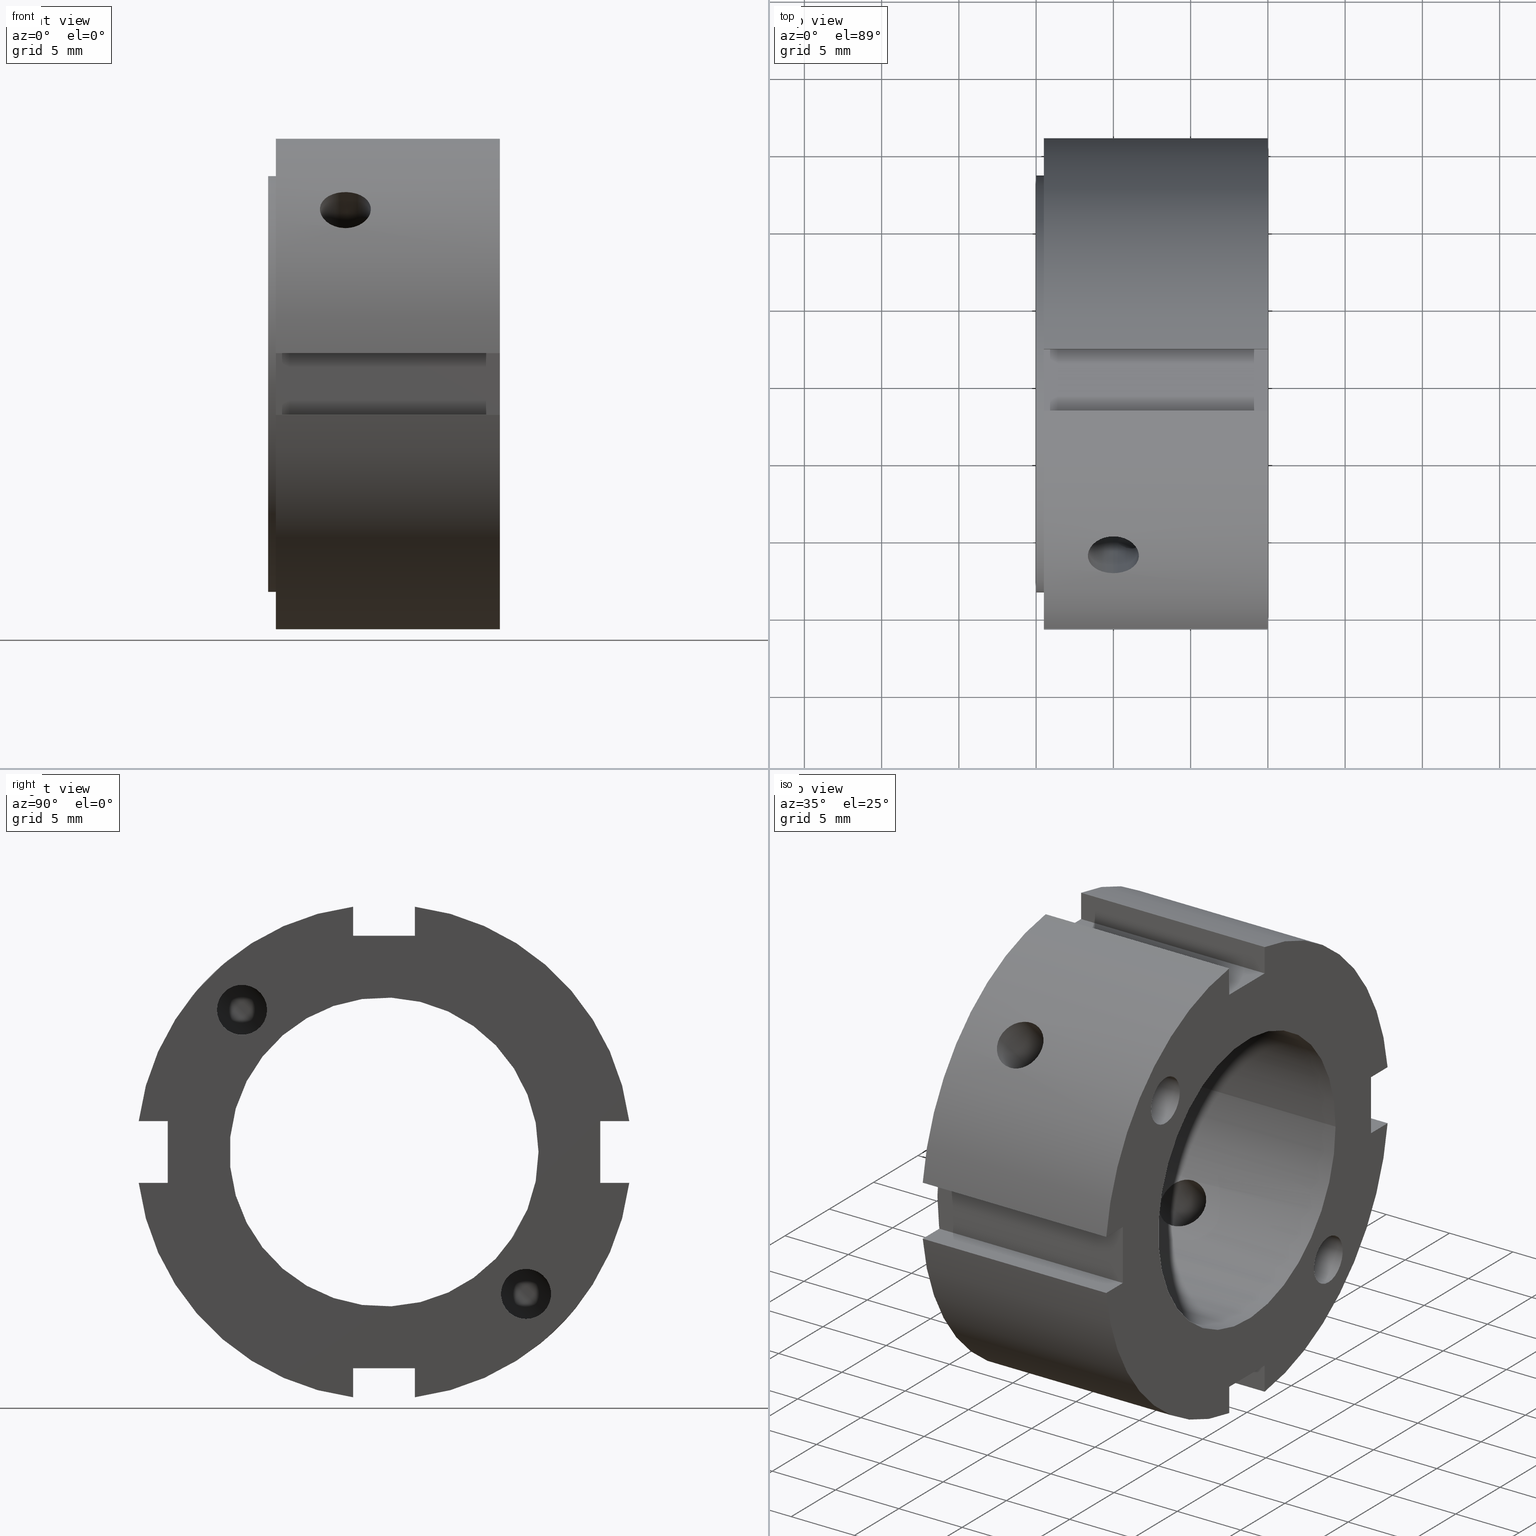
[diagram: canonical four-view strip — front | top / right | iso, engineering-drawing reading convention]
A machine part, canonical four-view strip (front | top / right | iso — engineering-drawing reading convention). The complete STEP part file that produces these views, byte-faithful:
ISO-10303-21;
HEADER;
/****************************************************************
 * Generated by software with PDElib inside                    *
 * PDElib Version v51a, created Wed 11/30/2011                  *
 * ITI Transcendata (http://www.transcendata.com/)              *
 ****************************************************************/
FILE_DESCRIPTION((''),'2;1');
FILE_NAME('C:\\Users\\sugidesign\\Documents\\Fukuda\\3Ddata\\ZMVtype\\FKD ZMV20.stp','2014-02-22T16:01:40',('sugidesign'),(''),'Autodesk Inventor LT ','Autodesk Inventor LT ','');
FILE_SCHEMA(('CONFIG_CONTROL_DESIGN'));
ENDSEC;
DATA;
#5=APPLICATION_CONTEXT('configuration controlled 3D designs of mechanical parts and assemblies');
#6=APPLICATION_PROTOCOL_DEFINITION('International Standard','ap203_configuration_controlled_3d_design_of_mechanical_parts_and_assemblies_mim_lf',2004,#5);
#7=PRODUCT_CONTEXT('',#5,'mechanical');
#8=PRODUCT('FKD ZMV20','FKD ZMV20',$,(#7));
#9=PRODUCT_RELATED_PRODUCT_CATEGORY('part',$,(#8));
#10=PRODUCT_DEFINITION_FORMATION('',$,#8);
#11=PRODUCT_DEFINITION_CONTEXT('part definition',#5,'design');
#12=PRODUCT_DEFINITION('',$,#10,#11);
#18=(NAMED_UNIT(*)PLANE_ANGLE_UNIT()SI_UNIT($,.RADIAN.));
#19=DIMENSIONAL_EXPONENTS(0.0,0.0,0.0,0.0,0.0,0.0,0.0);
#20=PLANE_ANGLE_MEASURE_WITH_UNIT(PLANE_ANGLE_MEASURE(0.0174532925),#18);
#24=(CONVERSION_BASED_UNIT('DEGREE',#20)NAMED_UNIT(#19)PLANE_ANGLE_UNIT());
#28=(NAMED_UNIT(*)SI_UNIT($,.STERADIAN.)SOLID_ANGLE_UNIT());
#32=(LENGTH_UNIT()NAMED_UNIT(*)SI_UNIT(.MILLI.,.METRE.));
#34=UNCERTAINTY_MEASURE_WITH_UNIT(LENGTH_MEASURE(0.01),#32,'DISTANCE_ACCURACY_VALUE','');
#36=(GEOMETRIC_REPRESENTATION_CONTEXT(3)GLOBAL_UNCERTAINTY_ASSIGNED_CONTEXT((#34))GLOBAL_UNIT_ASSIGNED_CONTEXT((#24,#28,#32))REPRESENTATION_CONTEXT('None','None'));
#37=AXIS2_PLACEMENT_3D('',#38,#39,#40);
#38=CARTESIAN_POINT('',(0.0,0.0,0.0));
#39=DIRECTION('',(0.0,0.0,1.0));
#40=DIRECTION('',(1.0,0.0,0.0));
#41=SHAPE_REPRESENTATION('',(#37),#36);
#42=PRODUCT_DEFINITION_SHAPE('','',#12);
#43=SHAPE_DEFINITION_REPRESENTATION(#42,#41);
#49=(NAMED_UNIT(*)PLANE_ANGLE_UNIT()SI_UNIT($,.RADIAN.));
#50=DIMENSIONAL_EXPONENTS(0.0,0.0,0.0,0.0,0.0,0.0,0.0);
#51=PLANE_ANGLE_MEASURE_WITH_UNIT(PLANE_ANGLE_MEASURE(0.0174532925),#49);
#55=(CONVERSION_BASED_UNIT('DEGREE',#51)NAMED_UNIT(#50)PLANE_ANGLE_UNIT());
#59=(NAMED_UNIT(*)SI_UNIT($,.STERADIAN.)SOLID_ANGLE_UNIT());
#63=(LENGTH_UNIT()NAMED_UNIT(*)SI_UNIT(.MILLI.,.METRE.));
#65=UNCERTAINTY_MEASURE_WITH_UNIT(LENGTH_MEASURE(0.000001),#63,'DISTANCE_ACCURACY_VALUE','');
#67=(GEOMETRIC_REPRESENTATION_CONTEXT(3)GLOBAL_UNCERTAINTY_ASSIGNED_CONTEXT((#65))GLOBAL_UNIT_ASSIGNED_CONTEXT((#55,#59,#63))REPRESENTATION_CONTEXT('','3D'));
#68=CARTESIAN_POINT('',(9.999999999999996,-9.192388155425116,9.192388155425119));
#69=DIRECTION('',(-1.0,0.0,0.0));
#70=DIRECTION('',(0.0,-1.0,0.0));
#71=AXIS2_PLACEMENT_3D('',#68,#69,#70);
#72=CYLINDRICAL_SURFACE('',#71,1.621);
#73=CARTESIAN_POINT('',(14.999999999999996,-10.813388155425116,9.192388155425119));
#74=VERTEX_POINT('',#73);
#75=CARTESIAN_POINT('',(14.999999999999996,-9.192388155425116,9.192388155425119));
#76=DIRECTION('',(-1.0,0.0,0.0));
#77=DIRECTION('',(0.0,-1.0,0.0));
#78=AXIS2_PLACEMENT_3D('',#75,#76,#77);
#79=CIRCLE('',#78,1.621);
#80=EDGE_CURVE('',#74,#74,#79,.T.);
#81=ORIENTED_EDGE('',*,*,#80,.F.);
#82=EDGE_LOOP('',(#81));
#83=FACE_OUTER_BOUND('',#82,.T.);
#84=CARTESIAN_POINT('',(5.307991883009919,-8.046168063121721,10.338608247728514));
#85=VERTEX_POINT('',#84);
#86=CARTESIAN_POINT('',(5.307991883009937,-8.046168063121721,10.338608247728514));
#87=CARTESIAN_POINT('',(5.307991883009937,-8.094434173080906,10.386874357687699));
#88=CARTESIAN_POINT('',(5.328608906915768,-8.135908889601279,10.422915350712579));
#89=CARTESIAN_POINT('',(5.379645951331566,-8.216964355883469,10.48810994490495));
#90=CARTESIAN_POINT('',(5.411230953491395,-8.256279993273525,10.516674355097663));
#91=CARTESIAN_POINT('',(5.515285602255865,-8.378714728158274,10.597797165692668));
#92=CARTESIAN_POINT('',(5.596034957619271,-8.464590121986131,10.644443524213248));
#93=CARTESIAN_POINT('',(5.850594408036054,-8.747889277276567,10.764705483275536));
#94=CARTESIAN_POINT('',(6.032903735948272,-8.96691162184772,10.813388155425121));
#95=CARTESIAN_POINT('',(6.31243042140148,-9.376244239611504,10.813388155425121));
#96=CARTESIAN_POINT('',(6.433314181594366,-9.584563053696748,10.780030094250137));
#97=CARTESIAN_POINT('',(6.560102959408971,-9.886430996629343,10.661278019552663));
#98=CARTESIAN_POINT('',(6.59360711019838,-9.985463190901193,10.610531564059082));
#99=CARTESIAN_POINT('',(6.638553059776977,-10.172194012449424,10.488550804664545));
#100=CARTESIAN_POINT('',(6.649999999999996,-10.259894797284598,10.417321698172428));
#101=CARTESIAN_POINT('',(6.649999999999996,-10.417321698172428,10.259894797284598));
#102=CARTESIAN_POINT('',(6.638553059776977,-10.488550804664543,10.172194012449427));
#103=CARTESIAN_POINT('',(6.59360711019838,-10.610531564059078,9.985463190901195));
#104=CARTESIAN_POINT('',(6.560102959408969,-10.661278019552658,9.886430996629343));
#105=CARTESIAN_POINT('',(6.433314181594366,-10.780030094250133,9.584563053696748));
#106=CARTESIAN_POINT('',(6.312430421401476,-10.813388155425116,9.376244239611504));
#107=CARTESIAN_POINT('',(6.032903735948269,-10.813388155425116,8.96691162184772));
#108=CARTESIAN_POINT('',(5.850594408036053,-10.764705483275531,8.74788927727657));
#109=CARTESIAN_POINT('',(5.596034957619269,-10.644443524213242,8.464590121986134));
#110=CARTESIAN_POINT('',(5.515285602255861,-10.597797165692665,8.378714728158275));
#111=CARTESIAN_POINT('',(5.411230953491392,-10.51667435509766,8.256279993273525));
#112=CARTESIAN_POINT('',(5.379645951331561,-10.488109944904949,8.216964355883473));
#113=CARTESIAN_POINT('',(5.328608906915761,-10.422915350712575,8.135908889601286));
#114=CARTESIAN_POINT('',(5.307991883009919,-10.386874357687695,8.094434173080911));
#115=CARTESIAN_POINT('',(5.307991883009919,-10.290342137769324,7.997901953162542));
#116=CARTESIAN_POINT('',(5.32860890691576,-10.248867421248953,7.961860960137662));
#117=CARTESIAN_POINT('',(5.379645951331557,-10.167811954966762,7.896666365945286));
#118=CARTESIAN_POINT('',(5.411230953491396,-10.128496317576712,7.868101955752574));
#119=CARTESIAN_POINT('',(5.515285602255862,-10.006061582691961,7.786979145157568));
#120=CARTESIAN_POINT('',(5.596034957619269,-9.920186188864102,7.740332786636992));
#121=CARTESIAN_POINT('',(5.850594408036052,-9.636887033573668,7.620070827574703));
#122=CARTESIAN_POINT('',(6.032903735948269,-9.417864689002515,7.571388155425122));
#123=CARTESIAN_POINT('',(6.312430421401477,-9.008532071238729,7.571388155425122));
#124=CARTESIAN_POINT('',(6.433314181594367,-8.800213257153486,7.604746216600102));
#125=CARTESIAN_POINT('',(6.560102959408971,-8.498345314220888,7.723498291297578));
#126=CARTESIAN_POINT('',(6.59360711019838,-8.399313119949039,7.774244746791156));
#127=CARTESIAN_POINT('',(6.638553059776976,-8.212582298400806,7.896225506185695));
#128=CARTESIAN_POINT('',(6.649999999999996,-8.124881513565631,7.967454612677816));
#129=CARTESIAN_POINT('',(6.649999999999996,-7.967454612677804,8.124881513565645));
#130=CARTESIAN_POINT('',(6.638553059776974,-7.896225506185686,8.212582298400816));
#131=CARTESIAN_POINT('',(6.593607110198377,-7.77424474679115,8.399313119949047));
#132=CARTESIAN_POINT('',(6.560102959408969,-7.723498291297572,8.498345314220897));
#133=CARTESIAN_POINT('',(6.433314181594366,-7.604746216600098,8.800213257153493));
#134=CARTESIAN_POINT('',(6.312430421401476,-7.571388155425114,9.008532071238735));
#135=CARTESIAN_POINT('',(6.032903735948267,-7.571388155425114,9.417864689002521));
#136=CARTESIAN_POINT('',(5.850594408036054,-7.6200708275747,9.636887033573672));
#137=CARTESIAN_POINT('',(5.596034957619269,-7.740332786636989,9.920186188864106));
#138=CARTESIAN_POINT('',(5.515285602255861,-7.786979145157566,10.006061582691963));
#139=CARTESIAN_POINT('',(5.411230953491391,-7.868101955752569,10.12849631757671));
#140=CARTESIAN_POINT('',(5.379645951331562,-7.896666365945282,10.167811954966766));
#141=CARTESIAN_POINT('',(5.328608906915764,-7.961860960137656,10.248867421248956));
#142=CARTESIAN_POINT('',(5.307991883009937,-7.997901953162537,10.290342137769329));
#143=CARTESIAN_POINT('',(5.307991883009937,-8.046168063121721,10.338608247728514));
#144=B_SPLINE_CURVE_WITH_KNOTS('',3,(#86,#87,#88,#89,#90,#91,#92,#93,#94,#95,#96,#97,#98,#99,#100,#101,#102,#103,#104,#105,#106,#107,#108,#109,#110,#111,#112,#113,#114,#115,#116,#117,#118,#119,#120,#121,#122,#123,#124,#125,#126,#127,#128,#129,#130,#131,#132,#133,#134,#135,#136,#137,#138,#139,#140,#141,#142,#143),.UNSPECIFIED.,.T.,.U.,(4,2,2,2,2,2,2,2,2,2,2,2,2,2,2,2,2,2,2,2,2,2,2,2,2,2,2,2,4),(0.0,0.020477576192181,0.040955152384362,0.081910304768724,0.163820609537448,0.230611187032828,0.264006475780518,0.297401764528208,0.330797053275898,0.364192342023588,0.430982919518968,0.512893224287692,0.553848376672054,0.574325952864235,0.594803529056416,0.615281105248596,0.635758681440777,0.676713833825139,0.758624138593863,0.825414716089243,0.858810004836934,0.892205293584624,0.925600582332313,0.958995871080003,1.025786448575383,1.107696753344107,1.148651905728469,1.16912948192065,1.189607058112831),.UNSPECIFIED.);
#145=EDGE_CURVE('',#85,#85,#144,.T.);
#146=ORIENTED_EDGE('',*,*,#145,.F.);
#147=EDGE_LOOP('',(#146));
#148=FACE_BOUND('',#147,.T.);
#149=ADVANCED_FACE('',(#83,#148),#72,.F.);
#150=CARTESIAN_POINT('',(4.999999999999996,-33.473870406632088,33.473870406632102));
#151=DIRECTION('',(0.0,-0.707106781186547,0.707106781186548));
#152=DIRECTION('',(1.0,0.0,0.0));
#153=AXIS2_PLACEMENT_3D('',#150,#151,#152);
#154=CYLINDRICAL_SURFACE('',#153,1.65);
#155=CARTESIAN_POINT('',(4.999999999999996,-12.420114567575144,10.086662189659545));
#156=VERTEX_POINT('',#155);
#157=CARTESIAN_POINT('',(4.999999999999996,-12.420114567575144,10.086662189659547));
#158=CARTESIAN_POINT('',(4.792663659632245,-12.420114567575144,10.086662189659547));
#159=CARTESIAN_POINT('',(4.571608693650929,-12.393953701340727,10.119143696572175));
#160=CARTESIAN_POINT('',(4.16512677785441,-12.286251284043512,10.249643255021541));
#161=CARTESIAN_POINT('',(3.979687199398132,-12.204549053884692,10.347489254358727));
#162=CARTESIAN_POINT('',(3.686860986654131,-12.012628808731057,10.569687810686009));
#163=CARTESIAN_POINT('',(3.559900775637115,-11.889556167077908,10.708866685158769));
#164=CARTESIAN_POINT('',(3.391466215537384,-11.613485061084397,11.007648989030365));
#165=CARTESIAN_POINT('',(3.349999999999995,-11.460316866524099,11.167100131445416));
#166=CARTESIAN_POINT('',(3.349999999999995,-11.167100131445405,11.460316866524106));
#167=CARTESIAN_POINT('',(3.39146621553738,-11.007648989030361,11.613485061084406));
#168=CARTESIAN_POINT('',(3.55990077563711,-10.708866685158764,11.889556167077917));
#169=CARTESIAN_POINT('',(3.68686098665413,-10.569687810685998,12.012628808731062));
#170=CARTESIAN_POINT('',(3.979687199398131,-10.34748925435872,12.204549053884699));
#171=CARTESIAN_POINT('',(4.165126777854407,-10.249643255021528,12.286251284043521));
#172=CARTESIAN_POINT('',(4.571608693650926,-10.119143696572161,12.393953701340736));
#173=CARTESIAN_POINT('',(4.792663659632245,-10.086662189659542,12.420114567575151));
#174=CARTESIAN_POINT('',(5.207336340367746,-10.086662189659542,12.420114567575151));
#175=CARTESIAN_POINT('',(5.428391306349065,-10.119143696572161,12.393953701340736));
#176=CARTESIAN_POINT('',(5.834873222145584,-10.249643255021528,12.286251284043521));
#177=CARTESIAN_POINT('',(6.020312800601859,-10.34748925435872,12.204549053884699));
#178=CARTESIAN_POINT('',(6.313139013345861,-10.569687810685998,12.012628808731062));
#179=CARTESIAN_POINT('',(6.440099224362882,-10.708866685158764,11.889556167077917));
#180=CARTESIAN_POINT('',(6.60853378446261,-11.007648989030361,11.613485061084406));
#181=CARTESIAN_POINT('',(6.649999999999996,-11.167100131445405,11.460316866524106));
#182=CARTESIAN_POINT('',(6.649999999999996,-11.460316866524099,11.167100131445418));
#183=CARTESIAN_POINT('',(6.60853378446261,-11.613485061084397,11.007648989030365));
#184=CARTESIAN_POINT('',(6.440099224362878,-11.889556167077908,10.708866685158769));
#185=CARTESIAN_POINT('',(6.313139013345861,-12.012628808731057,10.569687810686009));
#186=CARTESIAN_POINT('',(6.020312800601859,-12.204549053884692,10.347489254358727));
#187=CARTESIAN_POINT('',(5.834873222145581,-12.286251284043512,10.249643255021541));
#188=CARTESIAN_POINT('',(5.428391306349061,-12.393953701340727,10.119143696572175));
#189=CARTESIAN_POINT('',(5.207336340367748,-12.420114567575144,10.086662189659547));
#190=CARTESIAN_POINT('',(4.999999999999996,-12.420114567575144,10.086662189659547));
#191=B_SPLINE_CURVE_WITH_KNOTS('',3,(#157,#158,#159,#160,#161,#162,#163,#164,#165,#166,#167,#168,#169,#170,#171,#172,#173,#174,#175,#176,#177,#178,#179,#180,#181,#182,#183,#184,#185,#186,#187,#188,#189,#190),.UNSPECIFIED.,.T.,.U.,(4,2,2,2,2,2,2,2,2,2,2,2,2,2,2,2,4),(0.0,0.062200902110325,0.12440180422065,0.186602466740108,0.248803129259565,0.311003791779022,0.373204454298479,0.435405356408804,0.497606258519129,0.559807160629454,0.62200806273978,0.684208725259237,0.746409387778694,0.808610050298151,0.870810712817608,0.933011614927933,0.995212517038259),.UNSPECIFIED.);
#192=EDGE_CURVE('',#156,#156,#191,.T.);
#193=ORIENTED_EDGE('',*,*,#192,.F.);
#194=EDGE_LOOP('',(#193));
#195=FACE_OUTER_BOUND('',#194,.T.);
#196=ORIENTED_EDGE('',*,*,#145,.T.);
#197=EDGE_LOOP('',(#196));
#198=FACE_BOUND('',#197,.T.);
#199=CARTESIAN_POINT('',(4.999999999999996,-8.140874882526072,5.807422504610468));
#200=VERTEX_POINT('',#199);
#201=CARTESIAN_POINT('',(4.999999999999996,-8.140874882526068,5.807422504610472));
#202=CARTESIAN_POINT('',(5.207588777420593,-8.140874882526068,5.807422504610472));
#203=CARTESIAN_POINT('',(5.428749508045883,-8.116597860312618,5.841926613010431));
#204=CARTESIAN_POINT('',(5.835159784607249,-8.015822172041409,5.979453336035396));
#205=CARTESIAN_POINT('',(6.020442580638714,-7.939062193465798,6.082185930628081));
#206=CARTESIAN_POINT('',(6.313006046132061,-7.756491044388869,6.31336200230672));
#207=CARTESIAN_POINT('',(6.439929404162552,-7.638383916018895,6.457286595623886));
#208=CARTESIAN_POINT('',(6.608436791928987,-7.369201970303271,6.762863398406582));
#209=CARTESIAN_POINT('',(6.649999999999996,-7.21785148001344,6.924284143717512));
#210=CARTESIAN_POINT('',(6.649999999999996,-6.9242841437175,7.217851480013449));
#211=CARTESIAN_POINT('',(6.608436791928988,-6.762863398406571,7.36920197030328));
#212=CARTESIAN_POINT('',(6.439929404162552,-6.457286595623874,7.638383916018903));
#213=CARTESIAN_POINT('',(6.313006046132061,-6.313362002306706,7.756491044388878));
#214=CARTESIAN_POINT('',(6.020442580638714,-6.08218593062807,7.939062193465805));
#215=CARTESIAN_POINT('',(5.83515978460725,-5.979453336035382,8.015822172041419));
#216=CARTESIAN_POINT('',(5.428749508045883,-5.841926613010417,8.116597860312631));
#217=CARTESIAN_POINT('',(5.207588777420593,-5.807422504610461,8.140874882526077));
#218=CARTESIAN_POINT('',(4.792411222579398,-5.807422504610461,8.140874882526077));
#219=CARTESIAN_POINT('',(4.571250491954108,-5.841926613010415,8.116597860312629));
#220=CARTESIAN_POINT('',(4.164840215392741,-5.97945333603538,8.015822172041421));
#221=CARTESIAN_POINT('',(3.979557419361278,-6.08218593062807,7.939062193465805));
#222=CARTESIAN_POINT('',(3.686993953867931,-6.313362002306707,7.756491044388878));
#223=CARTESIAN_POINT('',(3.56007059583744,-6.457286595623874,7.638383916018904));
#224=CARTESIAN_POINT('',(3.391563208071004,-6.76286339840657,7.36920197030328));
#225=CARTESIAN_POINT('',(3.349999999999995,-6.9242841437175,7.217851480013449));
#226=CARTESIAN_POINT('',(3.349999999999995,-7.21785148001344,6.924284143717512));
#227=CARTESIAN_POINT('',(3.391563208071004,-7.369201970303269,6.762863398406582));
#228=CARTESIAN_POINT('',(3.560070595837439,-7.638383916018893,6.457286595623887));
#229=CARTESIAN_POINT('',(3.68699395386793,-7.756491044388869,6.31336200230672));
#230=CARTESIAN_POINT('',(3.979557419361277,-7.939062193465798,6.082185930628081));
#231=CARTESIAN_POINT('',(4.164840215392742,-8.015822172041409,5.979453336035396));
#232=CARTESIAN_POINT('',(4.57125049195411,-8.116597860312618,5.841926613010431));
#233=CARTESIAN_POINT('',(4.792411222579398,-8.140874882526068,5.807422504610472));
#234=CARTESIAN_POINT('',(4.999999999999996,-8.140874882526068,5.807422504610472));
#235=B_SPLINE_CURVE_WITH_KNOTS('',3,(#201,#202,#203,#204,#205,#206,#207,#208,#209,#210,#211,#212,#213,#214,#215,#216,#217,#218,#219,#220,#221,#222,#223,#224,#225,#226,#227,#228,#229,#230,#231,#232,#233,#234),.UNSPECIFIED.,.T.,.U.,(4,2,2,2,2,2,2,2,2,2,2,2,2,2,2,2,4),(0.0,0.062276633226179,0.124553266452359,0.186828302721278,0.249103338990196,0.311378375259115,0.373653411528034,0.435930044754214,0.498206677980393,0.560483311206572,0.622759944432752,0.685034980701671,0.74731001697059,0.809585053239508,0.871860089508427,0.934136722734607,0.996413355960786),.UNSPECIFIED.);
#236=EDGE_CURVE('',#200,#200,#235,.T.);
#237=ORIENTED_EDGE('',*,*,#236,.F.);
#238=EDGE_LOOP('',(#237));
#239=FACE_BOUND('',#238,.T.);
#240=ADVANCED_FACE('',(#195,#198,#239),#154,.F.);
#241=CARTESIAN_POINT('',(9.999999999999996,9.192388155425117,-9.192388155425117));
#242=DIRECTION('',(1.0,0.0,0.0));
#243=DIRECTION('',(0.0,0.0,-1.0));
#244=AXIS2_PLACEMENT_3D('',#241,#242,#243);
#245=CYLINDRICAL_SURFACE('',#244,1.621);
#246=CARTESIAN_POINT('',(5.307991883009919,10.338608247728512,-8.046168063121723));
#247=VERTEX_POINT('',#246);
#248=CARTESIAN_POINT('',(5.307991883009919,10.338608247728512,-8.046168063121723));
#249=CARTESIAN_POINT('',(5.307991883009919,10.290342137769326,-7.997901953162538));
#250=CARTESIAN_POINT('',(5.328608906915764,10.248867421248955,-7.961860960137659));
#251=CARTESIAN_POINT('',(5.379645951331562,10.167811954966764,-7.896666365945285));
#252=CARTESIAN_POINT('',(5.411230953491391,10.128496317576708,-7.868101955752572));
#253=CARTESIAN_POINT('',(5.515285602255861,10.006061582691961,-7.786979145157567));
#254=CARTESIAN_POINT('',(5.596034957619269,9.920186188864102,-7.740332786636991));
#255=CARTESIAN_POINT('',(5.850594408036052,9.63688703357367,-7.620070827574702));
#256=CARTESIAN_POINT('',(6.032903735948267,9.417864689002517,-7.571388155425116));
#257=CARTESIAN_POINT('',(6.312430421401476,9.008532071238733,-7.571388155425116));
#258=CARTESIAN_POINT('',(6.433314181594366,8.800213257153491,-7.6047462166001));
#259=CARTESIAN_POINT('',(6.560102959408969,8.498345314220897,-7.723498291297575));
#260=CARTESIAN_POINT('',(6.593607110198377,8.399313119949044,-7.774244746791153));
#261=CARTESIAN_POINT('',(6.638553059776974,8.212582298400816,-7.896225506185688));
#262=CARTESIAN_POINT('',(6.649999999999996,8.124881513565644,-7.967454612677805));
#263=CARTESIAN_POINT('',(6.649999999999996,7.967454612677813,-8.124881513565633));
#264=CARTESIAN_POINT('',(6.638553059776976,7.896225506185694,-8.212582298400807));
#265=CARTESIAN_POINT('',(6.59360711019838,7.774244746791156,-8.39931311994904));
#266=CARTESIAN_POINT('',(6.560102959408971,7.723498291297576,-8.49834531422089));
#267=CARTESIAN_POINT('',(6.433314181594367,7.6047462166001,-8.800213257153487));
#268=CARTESIAN_POINT('',(6.312430421401477,7.571388155425121,-9.008532071238731));
#269=CARTESIAN_POINT('',(6.032903735948269,7.571388155425121,-9.417864689002517));
#270=CARTESIAN_POINT('',(5.850594408036052,7.6200708275747,-9.63688703357367));
#271=CARTESIAN_POINT('',(5.596034957619269,7.74033278663699,-9.920186188864104));
#272=CARTESIAN_POINT('',(5.515285602255862,7.786979145157567,-10.006061582691963));
#273=CARTESIAN_POINT('',(5.411230953491396,7.868101955752572,-10.128496317576714));
#274=CARTESIAN_POINT('',(5.379645951331557,7.896666365945285,-10.167811954966764));
#275=CARTESIAN_POINT('',(5.32860890691576,7.961860960137659,-10.248867421248955));
#276=CARTESIAN_POINT('',(5.307991883009919,7.99790195316254,-10.290342137769326));
#277=CARTESIAN_POINT('',(5.307991883009919,8.094434173080908,-10.386874357687695));
#278=CARTESIAN_POINT('',(5.328608906915761,8.135908889601282,-10.422915350712579));
#279=CARTESIAN_POINT('',(5.379645951331562,8.216964355883473,-10.48810994490495));
#280=CARTESIAN_POINT('',(5.411230953491395,8.256279993273527,-10.516674355097662));
#281=CARTESIAN_POINT('',(5.515285602255863,8.378714728158275,-10.597797165692667));
#282=CARTESIAN_POINT('',(5.596034957619269,8.464590121986133,-10.644443524213244));
#283=CARTESIAN_POINT('',(5.850594408036052,8.747889277276567,-10.764705483275534));
#284=CARTESIAN_POINT('',(6.032903735948269,8.966911621847718,-10.81338815542512));
#285=CARTESIAN_POINT('',(6.312430421401476,9.376244239611504,-10.81338815542512));
#286=CARTESIAN_POINT('',(6.433314181594366,9.584563053696746,-10.780030094250135));
#287=CARTESIAN_POINT('',(6.560102959408971,9.886430996629342,-10.661278019552661));
#288=CARTESIAN_POINT('',(6.59360711019838,9.985463190901191,-10.61053156405908));
#289=CARTESIAN_POINT('',(6.638553059776977,10.172194012449422,-10.488550804664543));
#290=CARTESIAN_POINT('',(6.649999999999996,10.259894797284597,-10.417321698172426));
#291=CARTESIAN_POINT('',(6.649999999999996,10.417321698172426,-10.259894797284597));
#292=CARTESIAN_POINT('',(6.638553059776976,10.488550804664545,-10.172194012449424));
#293=CARTESIAN_POINT('',(6.593607110198379,10.610531564059082,-9.985463190901193));
#294=CARTESIAN_POINT('',(6.560102959408969,10.661278019552661,-9.88643099662934));
#295=CARTESIAN_POINT('',(6.433314181594364,10.780030094250137,-9.584563053696744));
#296=CARTESIAN_POINT('',(6.312430421401475,10.813388155425123,-9.376244239611502));
#297=CARTESIAN_POINT('',(6.032903735948265,10.813388155425123,-8.966911621847718));
#298=CARTESIAN_POINT('',(5.85059440803605,10.764705483275534,-8.747889277276567));
#299=CARTESIAN_POINT('',(5.596034957619269,10.644443524213241,-8.464590121986133));
#300=CARTESIAN_POINT('',(5.515285602255861,10.597797165692667,-8.378714728158274));
#301=CARTESIAN_POINT('',(5.411230953491392,10.516674355097662,-8.256279993273523));
#302=CARTESIAN_POINT('',(5.379645951331553,10.488109944904949,-8.216964355883471));
#303=CARTESIAN_POINT('',(5.328608906915758,10.422915350712575,-8.135908889601282));
#304=CARTESIAN_POINT('',(5.307991883009919,10.386874357687695,-8.094434173080908));
#305=CARTESIAN_POINT('',(5.307991883009919,10.338608247728512,-8.046168063121723));
#306=B_SPLINE_CURVE_WITH_KNOTS('',3,(#248,#249,#250,#251,#252,#253,#254,#255,#256,#257,#258,#259,#260,#261,#262,#263,#264,#265,#266,#267,#268,#269,#270,#271,#272,#273,#274,#275,#276,#277,#278,#279,#280,#281,#282,#283,#284,#285,#286,#287,#288,#289,#290,#291,#292,#293,#294,#295,#296,#297,#298,#299,#300,#301,#302,#303,#304,#305),.UNSPECIFIED.,.T.,.U.,(4,2,2,2,2,2,2,2,2,2,2,2,2,2,2,2,2,2,2,2,2,2,2,2,2,2,2,2,4),(0.0,0.020477576192181,0.040955152384362,0.081910304768724,0.163820609537448,0.230611187032827,0.264006475780517,0.297401764528207,0.330797053275897,0.364192342023587,0.430982919518967,0.512893224287691,0.553848376672053,0.574325952864234,0.594803529056415,0.615281105248596,0.635758681440777,0.676713833825139,0.758624138593863,0.825414716089243,0.858810004836933,0.892205293584623,0.925600582332313,0.958995871080003,1.025786448575383,1.107696753344106,1.148651905728468,1.169129481920649,1.18960705811283),.UNSPECIFIED.);
#307=EDGE_CURVE('',#247,#247,#306,.T.);
#308=ORIENTED_EDGE('',*,*,#307,.F.);
#309=EDGE_LOOP('',(#308));
#310=FACE_OUTER_BOUND('',#309,.T.);
#311=CARTESIAN_POINT('',(14.999999999999996,9.192388155425117,-10.81338815542512));
#312=VERTEX_POINT('',#311);
#313=CARTESIAN_POINT('',(14.999999999999996,9.192388155425117,-9.192388155425117));
#314=DIRECTION('',(-1.0,0.0,0.0));
#315=DIRECTION('',(0.0,0.0,-1.0));
#316=AXIS2_PLACEMENT_3D('',#313,#314,#315);
#317=CIRCLE('',#316,1.621);
#318=EDGE_CURVE('',#312,#312,#317,.T.);
#319=ORIENTED_EDGE('',*,*,#318,.F.);
#320=EDGE_LOOP('',(#319));
#321=FACE_BOUND('',#320,.T.);
#322=ADVANCED_FACE('',(#310,#321),#245,.F.);
#323=CARTESIAN_POINT('',(4.999999999999996,33.473870406632095,-33.473870406632102));
#324=DIRECTION('',(0.0,-0.707106781186547,0.707106781186548));
#325=DIRECTION('',(1.0,0.0,0.0));
#326=AXIS2_PLACEMENT_3D('',#323,#324,#325);
#327=CYLINDRICAL_SURFACE('',#326,1.65);
#328=CARTESIAN_POINT('',(4.999999999999996,10.086662189659544,-12.420114567575148));
#329=VERTEX_POINT('',#328);
#330=CARTESIAN_POINT('',(4.999999999999995,10.086662189659542,-12.420114567575149));
#331=CARTESIAN_POINT('',(5.207336340367745,10.086662189659542,-12.420114567575149));
#332=CARTESIAN_POINT('',(5.428391306349065,10.119143696572163,-12.393953701340735));
#333=CARTESIAN_POINT('',(5.834873222145586,10.24964325502153,-12.286251284043519));
#334=CARTESIAN_POINT('',(6.020312800601859,10.347489254358727,-12.204549053884694));
#335=CARTESIAN_POINT('',(6.313139013345861,10.569687810686009,-12.012628808731058));
#336=CARTESIAN_POINT('',(6.440099224362882,10.708866685158767,-11.889556167077913));
#337=CARTESIAN_POINT('',(6.60853378446261,11.007648989030363,-11.613485061084404));
#338=CARTESIAN_POINT('',(6.649999999999996,11.167100131445411,-11.460316866524103));
#339=CARTESIAN_POINT('',(6.649999999999996,11.460316866524105,-11.167100131445409));
#340=CARTESIAN_POINT('',(6.608533784462606,11.6134850610844,-11.007648989030361));
#341=CARTESIAN_POINT('',(6.440099224362875,11.889556167077913,-10.708866685158764));
#342=CARTESIAN_POINT('',(6.313139013345861,12.01262880873106,-10.569687810686004));
#343=CARTESIAN_POINT('',(6.020312800601858,12.204549053884698,-10.347489254358724));
#344=CARTESIAN_POINT('',(5.83487322214558,12.286251284043519,-10.249643255021537));
#345=CARTESIAN_POINT('',(5.428391306349061,12.393953701340735,-10.11914369657217));
#346=CARTESIAN_POINT('',(5.207336340367746,12.420114567575151,-10.086662189659542));
#347=CARTESIAN_POINT('',(4.792663659632245,12.420114567575151,-10.086662189659542));
#348=CARTESIAN_POINT('',(4.57160869365093,12.393953701340735,-10.11914369657217));
#349=CARTESIAN_POINT('',(4.16512677785441,12.286251284043519,-10.249643255021537));
#350=CARTESIAN_POINT('',(3.979687199398133,12.204549053884698,-10.347489254358724));
#351=CARTESIAN_POINT('',(3.686860986654131,12.01262880873106,-10.569687810686004));
#352=CARTESIAN_POINT('',(3.559900775637115,11.889556167077913,-10.708866685158764));
#353=CARTESIAN_POINT('',(3.391466215537384,11.6134850610844,-11.007648989030361));
#354=CARTESIAN_POINT('',(3.349999999999995,11.460316866524105,-11.167100131445409));
#355=CARTESIAN_POINT('',(3.349999999999994,11.167100131445409,-11.460316866524103));
#356=CARTESIAN_POINT('',(3.391466215537382,11.007648989030363,-11.613485061084404));
#357=CARTESIAN_POINT('',(3.55990077563711,10.708866685158767,-11.889556167077913));
#358=CARTESIAN_POINT('',(3.68686098665413,10.569687810686009,-12.012628808731058));
#359=CARTESIAN_POINT('',(3.979687199398131,10.347489254358727,-12.204549053884694));
#360=CARTESIAN_POINT('',(4.165126777854406,10.249643255021535,-12.286251284043519));
#361=CARTESIAN_POINT('',(4.571608693650925,10.119143696572166,-12.393953701340735));
#362=CARTESIAN_POINT('',(4.792663659632244,10.086662189659542,-12.420114567575149));
#363=CARTESIAN_POINT('',(4.999999999999996,10.086662189659542,-12.420114567575149));
#364=B_SPLINE_CURVE_WITH_KNOTS('',3,(#330,#331,#332,#333,#334,#335,#336,#337,#338,#339,#340,#341,#342,#343,#344,#345,#346,#347,#348,#349,#350,#351,#352,#353,#354,#355,#356,#357,#358,#359,#360,#361,#362,#363),.UNSPECIFIED.,.T.,.U.,(4,2,2,2,2,2,2,2,2,2,2,2,2,2,2,2,4),(0.0,0.062200902110325,0.124401804220651,0.186602466740108,0.248803129259565,0.311003791779022,0.373204454298479,0.435405356408804,0.497606258519129,0.559807160629455,0.62200806273978,0.684208725259237,0.746409387778694,0.808610050298151,0.870810712817608,0.933011614927933,0.995212517038259),.UNSPECIFIED.);
#365=EDGE_CURVE('',#329,#329,#364,.T.);
#366=ORIENTED_EDGE('',*,*,#365,.F.);
#367=EDGE_LOOP('',(#366));
#368=FACE_OUTER_BOUND('',#367,.T.);
#369=ORIENTED_EDGE('',*,*,#307,.T.);
#370=EDGE_LOOP('',(#369));
#371=FACE_BOUND('',#370,.T.);
#372=CARTESIAN_POINT('',(4.999999999999996,5.807422504610465,-8.140874882526072));
#373=VERTEX_POINT('',#372);
#374=CARTESIAN_POINT('',(4.999999999999996,5.807422504610465,-8.140874882526074));
#375=CARTESIAN_POINT('',(4.792411222579398,5.807422504610465,-8.140874882526074));
#376=CARTESIAN_POINT('',(4.571250491954108,5.841926613010421,-8.116597860312625));
#377=CARTESIAN_POINT('',(4.164840215392741,5.979453336035387,-8.015822172041416));
#378=CARTESIAN_POINT('',(3.979557419361278,6.082185930628075,-7.939062193465802));
#379=CARTESIAN_POINT('',(3.686993953867931,6.313362002306713,-7.756491044388874));
#380=CARTESIAN_POINT('',(3.560070595837439,6.45728659562388,-7.638383916018901));
#381=CARTESIAN_POINT('',(3.391563208071005,6.762863398406577,-7.369201970303277));
#382=CARTESIAN_POINT('',(3.349999999999995,6.924284143717506,-7.217851480013444));
#383=CARTESIAN_POINT('',(3.349999999999995,7.217851480013444,-6.924284143717507));
#384=CARTESIAN_POINT('',(3.391563208071004,7.369201970303275,-6.762863398406578));
#385=CARTESIAN_POINT('',(3.560070595837439,7.638383916018898,-6.457286595623881));
#386=CARTESIAN_POINT('',(3.68699395386793,7.756491044388874,-6.313362002306713));
#387=CARTESIAN_POINT('',(3.979557419361277,7.9390621934658,-6.082185930628077));
#388=CARTESIAN_POINT('',(4.164840215392742,8.015822172041411,-5.979453336035392));
#389=CARTESIAN_POINT('',(4.57125049195411,8.116597860312622,-5.841926613010426));
#390=CARTESIAN_POINT('',(4.792411222579397,8.140874882526072,-5.807422504610468));
#391=CARTESIAN_POINT('',(5.207588777420593,8.140874882526072,-5.807422504610468));
#392=CARTESIAN_POINT('',(5.428749508045883,8.116597860312622,-5.841926613010426));
#393=CARTESIAN_POINT('',(5.835159784607249,8.015822172041411,-5.979453336035392));
#394=CARTESIAN_POINT('',(6.020442580638714,7.9390621934658,-6.082185930628077));
#395=CARTESIAN_POINT('',(6.313006046132061,7.756491044388874,-6.313362002306713));
#396=CARTESIAN_POINT('',(6.439929404162552,7.638383916018898,-6.457286595623881));
#397=CARTESIAN_POINT('',(6.608436791928987,7.369201970303275,-6.762863398406578));
#398=CARTESIAN_POINT('',(6.649999999999996,7.217851480013444,-6.924284143717506));
#399=CARTESIAN_POINT('',(6.649999999999996,6.924284143717506,-7.217851480013444));
#400=CARTESIAN_POINT('',(6.608436791928987,6.762863398406577,-7.369201970303276));
#401=CARTESIAN_POINT('',(6.439929404162552,6.45728659562388,-7.638383916018898));
#402=CARTESIAN_POINT('',(6.313006046132061,6.313362002306713,-7.756491044388874));
#403=CARTESIAN_POINT('',(6.020442580638714,6.082185930628075,-7.939062193465802));
#404=CARTESIAN_POINT('',(5.83515978460725,5.979453336035388,-8.015822172041414));
#405=CARTESIAN_POINT('',(5.428749508045883,5.841926613010423,-8.116597860312625));
#406=CARTESIAN_POINT('',(5.207588777420593,5.807422504610465,-8.140874882526074));
#407=CARTESIAN_POINT('',(4.999999999999996,5.807422504610465,-8.140874882526074));
#408=B_SPLINE_CURVE_WITH_KNOTS('',3,(#374,#375,#376,#377,#378,#379,#380,#381,#382,#383,#384,#385,#386,#387,#388,#389,#390,#391,#392,#393,#394,#395,#396,#397,#398,#399,#400,#401,#402,#403,#404,#405,#406,#407),.UNSPECIFIED.,.T.,.U.,(4,2,2,2,2,2,2,2,2,2,2,2,2,2,2,2,4),(0.0,0.062276633226179,0.124553266452359,0.186828302721278,0.249103338990197,0.311378375259115,0.373653411528034,0.435930044754214,0.498206677980393,0.560483311206572,0.622759944432752,0.685034980701671,0.74731001697059,0.809585053239509,0.871860089508427,0.934136722734607,0.996413355960786),.UNSPECIFIED.);
#409=EDGE_CURVE('',#373,#373,#408,.T.);
#410=ORIENTED_EDGE('',*,*,#409,.F.);
#411=EDGE_LOOP('',(#410));
#412=FACE_BOUND('',#411,.T.);
#413=ADVANCED_FACE('',(#368,#371,#412),#327,.F.);
#414=CARTESIAN_POINT('',(14.999999999999996,-2.000000000000002,-13.999999999999996));
#415=DIRECTION('',(0.0,-1.0,0.0));
#416=DIRECTION('',(-1.0,0.0,0.0));
#417=AXIS2_PLACEMENT_3D('',#414,#415,#416);
#418=PLANE('',#417);
#419=CARTESIAN_POINT('',(0.499999999999998,-2.000000000000002,-13.999999999999996));
#420=VERTEX_POINT('',#419);
#421=CARTESIAN_POINT('',(0.499999999999998,-2.000000000000003,-15.874507866387539));
#422=VERTEX_POINT('',#421);
#423=CARTESIAN_POINT('',(0.499999999999998,-2.000000000000002,-13.999999999999996));
#424=DIRECTION('',(0.0,0.0,-1.0));
#425=VECTOR('',#424,1.874507866387543);
#426=LINE('',#423,#425);
#427=EDGE_CURVE('',#420,#422,#426,.T.);
#428=ORIENTED_EDGE('',*,*,#427,.F.);
#429=CARTESIAN_POINT('',(14.999999999999996,-2.000000000000002,-13.999999999999996));
#430=VERTEX_POINT('',#429);
#431=CARTESIAN_POINT('',(14.999999999999996,-2.000000000000002,-13.999999999999996));
#432=DIRECTION('',(-1.0,0.0,0.0));
#433=VECTOR('',#432,14.499999999999996);
#434=LINE('',#431,#433);
#435=EDGE_CURVE('',#430,#420,#434,.T.);
#436=ORIENTED_EDGE('',*,*,#435,.F.);
#437=CARTESIAN_POINT('',(14.999999999999996,-2.000000000000003,-15.874507866387539));
#438=VERTEX_POINT('',#437);
#439=CARTESIAN_POINT('',(14.999999999999996,-2.000000000000002,-15.874507866387539));
#440=DIRECTION('',(0.0,0.0,1.0));
#441=VECTOR('',#440,1.874507866387543);
#442=LINE('',#439,#441);
#443=EDGE_CURVE('',#438,#430,#442,.T.);
#444=ORIENTED_EDGE('',*,*,#443,.F.);
#445=CARTESIAN_POINT('',(0.499999999999998,-2.000000000000003,-15.874507866387539));
#446=DIRECTION('',(1.0,0.0,0.0));
#447=VECTOR('',#446,14.499999999999998);
#448=LINE('',#445,#447);
#449=EDGE_CURVE('',#422,#438,#448,.T.);
#450=ORIENTED_EDGE('',*,*,#449,.F.);
#451=EDGE_LOOP('',(#428,#436,#444,#450));
#452=FACE_OUTER_BOUND('',#451,.T.);
#453=ADVANCED_FACE('',(#452),#418,.F.);
#454=CARTESIAN_POINT('',(14.999999999999996,1.999999999999996,-15.999999999999996));
#455=DIRECTION('',(0.0,1.0,0.0));
#456=DIRECTION('',(1.0,0.0,0.0));
#457=AXIS2_PLACEMENT_3D('',#454,#455,#456);
#458=PLANE('',#457);
#459=CARTESIAN_POINT('',(0.499999999999998,1.999999999999996,-15.874507866387539));
#460=VERTEX_POINT('',#459);
#461=CARTESIAN_POINT('',(0.499999999999998,1.999999999999997,-13.999999999999996));
#462=VERTEX_POINT('',#461);
#463=CARTESIAN_POINT('',(0.499999999999998,1.999999999999997,-15.874507866387539));
#464=DIRECTION('',(0.0,0.0,1.0));
#465=VECTOR('',#464,1.874507866387543);
#466=LINE('',#463,#465);
#467=EDGE_CURVE('',#460,#462,#466,.T.);
#468=ORIENTED_EDGE('',*,*,#467,.F.);
#469=CARTESIAN_POINT('',(14.999999999999996,1.999999999999996,-15.874507866387539));
#470=VERTEX_POINT('',#469);
#471=CARTESIAN_POINT('',(14.999999999999996,1.999999999999996,-15.874507866387543));
#472=DIRECTION('',(-1.0,0.0,0.0));
#473=VECTOR('',#472,14.499999999999998);
#474=LINE('',#471,#473);
#475=EDGE_CURVE('',#470,#460,#474,.T.);
#476=ORIENTED_EDGE('',*,*,#475,.F.);
#477=CARTESIAN_POINT('',(14.999999999999996,1.999999999999997,-13.999999999999996));
#478=VERTEX_POINT('',#477);
#479=CARTESIAN_POINT('',(14.999999999999996,1.999999999999998,-13.999999999999996));
#480=DIRECTION('',(0.0,0.0,-1.0));
#481=VECTOR('',#480,1.874507866387543);
#482=LINE('',#479,#481);
#483=EDGE_CURVE('',#478,#470,#482,.T.);
#484=ORIENTED_EDGE('',*,*,#483,.F.);
#485=CARTESIAN_POINT('',(14.999999999999996,1.999999999999997,-13.999999999999996));
#486=DIRECTION('',(-1.0,0.0,0.0));
#487=VECTOR('',#486,14.499999999999996);
#488=LINE('',#485,#487);
#489=EDGE_CURVE('',#478,#462,#488,.T.);
#490=ORIENTED_EDGE('',*,*,#489,.T.);
#491=EDGE_LOOP('',(#468,#476,#484,#490));
#492=FACE_OUTER_BOUND('',#491,.T.);
#493=ADVANCED_FACE('',(#492),#458,.F.);
#494=CARTESIAN_POINT('',(14.999999999999996,1.999999999999997,-13.999999999999996));
#495=DIRECTION('',(0.0,0.0,1.0));
#496=DIRECTION('',(0.0,-1.0,0.0));
#497=AXIS2_PLACEMENT_3D('',#494,#495,#496);
#498=PLANE('',#497);
#499=CARTESIAN_POINT('',(0.499999999999998,1.999999999999998,-13.999999999999998));
#500=DIRECTION('',(0.0,-1.0,0.0));
#501=VECTOR('',#500,4.0);
#502=LINE('',#499,#501);
#503=EDGE_CURVE('',#462,#420,#502,.T.);
#504=ORIENTED_EDGE('',*,*,#503,.F.);
#505=ORIENTED_EDGE('',*,*,#489,.F.);
#506=CARTESIAN_POINT('',(14.999999999999996,-2.000000000000004,-13.999999999999998));
#507=DIRECTION('',(0.0,1.0,0.0));
#508=VECTOR('',#507,4.000000000000001);
#509=LINE('',#506,#508);
#510=EDGE_CURVE('',#430,#478,#509,.T.);
#511=ORIENTED_EDGE('',*,*,#510,.F.);
#512=ORIENTED_EDGE('',*,*,#435,.T.);
#513=EDGE_LOOP('',(#504,#505,#511,#512));
#514=FACE_OUTER_BOUND('',#513,.T.);
#515=ADVANCED_FACE('',(#514),#498,.F.);
#516=CARTESIAN_POINT('',(14.999999999999996,-13.999999999999996,2.000000000000001));
#517=DIRECTION('',(0.0,0.0,1.0));
#518=DIRECTION('',(-1.0,0.0,0.0));
#519=AXIS2_PLACEMENT_3D('',#516,#517,#518);
#520=PLANE('',#519);
#521=CARTESIAN_POINT('',(0.499999999999998,-13.999999999999996,2.000000000000001));
#522=VERTEX_POINT('',#521);
#523=CARTESIAN_POINT('',(0.499999999999998,-15.874507866387539,2.000000000000002));
#524=VERTEX_POINT('',#523);
#525=CARTESIAN_POINT('',(0.499999999999998,-13.999999999999996,2.000000000000001));
#526=DIRECTION('',(0.0,-1.0,0.0));
#527=VECTOR('',#526,1.874507866387543);
#528=LINE('',#525,#527);
#529=EDGE_CURVE('',#522,#524,#528,.T.);
#530=ORIENTED_EDGE('',*,*,#529,.F.);
#531=CARTESIAN_POINT('',(14.999999999999996,-13.999999999999996,2.000000000000001));
#532=VERTEX_POINT('',#531);
#533=CARTESIAN_POINT('',(14.999999999999996,-13.999999999999996,2.000000000000001));
#534=DIRECTION('',(-1.0,0.0,0.0));
#535=VECTOR('',#534,14.499999999999996);
#536=LINE('',#533,#535);
#537=EDGE_CURVE('',#532,#522,#536,.T.);
#538=ORIENTED_EDGE('',*,*,#537,.F.);
#539=CARTESIAN_POINT('',(14.999999999999996,-15.874507866387539,2.000000000000002));
#540=VERTEX_POINT('',#539);
#541=CARTESIAN_POINT('',(14.999999999999996,-15.874507866387539,2.000000000000001));
#542=DIRECTION('',(0.0,1.0,0.0));
#543=VECTOR('',#542,1.874507866387543);
#544=LINE('',#541,#543);
#545=EDGE_CURVE('',#540,#532,#544,.T.);
#546=ORIENTED_EDGE('',*,*,#545,.F.);
#547=CARTESIAN_POINT('',(0.499999999999998,-15.874507866387539,2.000000000000001));
#548=DIRECTION('',(1.0,0.0,0.0));
#549=VECTOR('',#548,14.499999999999998);
#550=LINE('',#547,#549);
#551=EDGE_CURVE('',#524,#540,#550,.T.);
#552=ORIENTED_EDGE('',*,*,#551,.F.);
#553=EDGE_LOOP('',(#530,#538,#546,#552));
#554=FACE_OUTER_BOUND('',#553,.T.);
#555=ADVANCED_FACE('',(#554),#520,.F.);
#556=CARTESIAN_POINT('',(14.999999999999996,-15.999999999999996,-1.999999999999997));
#557=DIRECTION('',(0.0,0.0,-1.0));
#558=DIRECTION('',(1.0,0.0,0.0));
#559=AXIS2_PLACEMENT_3D('',#556,#557,#558);
#560=PLANE('',#559);
#561=CARTESIAN_POINT('',(0.499999999999998,-15.874507866387539,-1.999999999999997));
#562=VERTEX_POINT('',#561);
#563=CARTESIAN_POINT('',(0.499999999999998,-13.999999999999996,-1.999999999999998));
#564=VERTEX_POINT('',#563);
#565=CARTESIAN_POINT('',(0.499999999999998,-15.874507866387539,-1.999999999999997));
#566=DIRECTION('',(0.0,1.0,0.0));
#567=VECTOR('',#566,1.874507866387543);
#568=LINE('',#565,#567);
#569=EDGE_CURVE('',#562,#564,#568,.T.);
#570=ORIENTED_EDGE('',*,*,#569,.F.);
#571=CARTESIAN_POINT('',(14.999999999999996,-15.874507866387539,-1.999999999999997));
#572=VERTEX_POINT('',#571);
#573=CARTESIAN_POINT('',(14.999999999999996,-15.874507866387539,-1.999999999999998));
#574=DIRECTION('',(-1.0,0.0,0.0));
#575=VECTOR('',#574,14.499999999999998);
#576=LINE('',#573,#575);
#577=EDGE_CURVE('',#572,#562,#576,.T.);
#578=ORIENTED_EDGE('',*,*,#577,.F.);
#579=CARTESIAN_POINT('',(14.999999999999996,-13.999999999999996,-1.999999999999998));
#580=VERTEX_POINT('',#579);
#581=CARTESIAN_POINT('',(14.999999999999996,-13.999999999999998,-1.999999999999998));
#582=DIRECTION('',(0.0,-1.0,0.0));
#583=VECTOR('',#582,1.874507866387543);
#584=LINE('',#581,#583);
#585=EDGE_CURVE('',#580,#572,#584,.T.);
#586=ORIENTED_EDGE('',*,*,#585,.F.);
#587=CARTESIAN_POINT('',(14.999999999999996,-13.999999999999996,-1.999999999999998));
#588=DIRECTION('',(-1.0,0.0,0.0));
#589=VECTOR('',#588,14.499999999999996);
#590=LINE('',#587,#589);
#591=EDGE_CURVE('',#580,#564,#590,.T.);
#592=ORIENTED_EDGE('',*,*,#591,.T.);
#593=EDGE_LOOP('',(#570,#578,#586,#592));
#594=FACE_OUTER_BOUND('',#593,.T.);
#595=ADVANCED_FACE('',(#594),#560,.F.);
#596=CARTESIAN_POINT('',(14.999999999999996,-13.999999999999996,-1.999999999999998));
#597=DIRECTION('',(0.0,1.0,0.0));
#598=DIRECTION('',(0.0,0.0,1.0));
#599=AXIS2_PLACEMENT_3D('',#596,#597,#598);
#600=PLANE('',#599);
#601=CARTESIAN_POINT('',(0.499999999999998,-13.999999999999995,-1.999999999999998));
#602=DIRECTION('',(0.0,0.0,1.0));
#603=VECTOR('',#602,4.0);
#604=LINE('',#601,#603);
#605=EDGE_CURVE('',#564,#522,#604,.T.);
#606=ORIENTED_EDGE('',*,*,#605,.F.);
#607=ORIENTED_EDGE('',*,*,#591,.F.);
#608=CARTESIAN_POINT('',(14.999999999999996,-13.999999999999995,2.000000000000001));
#609=DIRECTION('',(0.0,0.0,-1.0));
#610=VECTOR('',#609,4.0);
#611=LINE('',#608,#610);
#612=EDGE_CURVE('',#532,#580,#611,.T.);
#613=ORIENTED_EDGE('',*,*,#612,.F.);
#614=ORIENTED_EDGE('',*,*,#537,.T.);
#615=EDGE_LOOP('',(#606,#607,#613,#614));
#616=FACE_OUTER_BOUND('',#615,.T.);
#617=ADVANCED_FACE('',(#616),#600,.F.);
#618=CARTESIAN_POINT('',(14.999999999999996,2.000000000000001,13.999999999999996));
#619=DIRECTION('',(0.0,1.0,0.0));
#620=DIRECTION('',(-1.0,0.0,0.0));
#621=AXIS2_PLACEMENT_3D('',#618,#619,#620);
#622=PLANE('',#621);
#623=CARTESIAN_POINT('',(0.499999999999998,2.000000000000001,13.999999999999996));
#624=VERTEX_POINT('',#623);
#625=CARTESIAN_POINT('',(0.499999999999998,2.000000000000001,15.874507866387539));
#626=VERTEX_POINT('',#625);
#627=CARTESIAN_POINT('',(0.499999999999998,2.000000000000001,13.999999999999996));
#628=DIRECTION('',(0.0,0.0,1.0));
#629=VECTOR('',#628,1.874507866387543);
#630=LINE('',#627,#629);
#631=EDGE_CURVE('',#624,#626,#630,.T.);
#632=ORIENTED_EDGE('',*,*,#631,.F.);
#633=CARTESIAN_POINT('',(14.999999999999996,2.000000000000001,13.999999999999996));
#634=VERTEX_POINT('',#633);
#635=CARTESIAN_POINT('',(14.999999999999996,2.000000000000001,13.999999999999996));
#636=DIRECTION('',(-1.0,0.0,0.0));
#637=VECTOR('',#636,14.499999999999996);
#638=LINE('',#635,#637);
#639=EDGE_CURVE('',#634,#624,#638,.T.);
#640=ORIENTED_EDGE('',*,*,#639,.F.);
#641=CARTESIAN_POINT('',(14.999999999999996,2.000000000000001,15.874507866387539));
#642=VERTEX_POINT('',#641);
#643=CARTESIAN_POINT('',(14.999999999999996,2.000000000000001,15.874507866387539));
#644=DIRECTION('',(0.0,0.0,-1.0));
#645=VECTOR('',#644,1.874507866387543);
#646=LINE('',#643,#645);
#647=EDGE_CURVE('',#642,#634,#646,.T.);
#648=ORIENTED_EDGE('',*,*,#647,.F.);
#649=CARTESIAN_POINT('',(0.499999999999998,2.000000000000001,15.874507866387539));
#650=DIRECTION('',(1.0,0.0,0.0));
#651=VECTOR('',#650,14.499999999999998);
#652=LINE('',#649,#651);
#653=EDGE_CURVE('',#626,#642,#652,.T.);
#654=ORIENTED_EDGE('',*,*,#653,.F.);
#655=EDGE_LOOP('',(#632,#640,#648,#654));
#656=FACE_OUTER_BOUND('',#655,.T.);
#657=ADVANCED_FACE('',(#656),#622,.F.);
#658=CARTESIAN_POINT('',(14.999999999999996,-1.999999999999998,15.999999999999996));
#659=DIRECTION('',(0.0,-1.0,0.0));
#660=DIRECTION('',(1.0,0.0,0.0));
#661=AXIS2_PLACEMENT_3D('',#658,#659,#660);
#662=PLANE('',#661);
#663=CARTESIAN_POINT('',(0.499999999999998,-1.999999999999998,15.874507866387539));
#664=VERTEX_POINT('',#663);
#665=CARTESIAN_POINT('',(0.499999999999998,-1.999999999999999,13.999999999999996));
#666=VERTEX_POINT('',#665);
#667=CARTESIAN_POINT('',(0.499999999999998,-1.999999999999997,15.874507866387539));
#668=DIRECTION('',(0.0,0.0,-1.0));
#669=VECTOR('',#668,1.874507866387543);
#670=LINE('',#667,#669);
#671=EDGE_CURVE('',#664,#666,#670,.T.);
#672=ORIENTED_EDGE('',*,*,#671,.F.);
#673=CARTESIAN_POINT('',(14.999999999999996,-1.999999999999998,15.874507866387539));
#674=VERTEX_POINT('',#673);
#675=CARTESIAN_POINT('',(14.999999999999996,-1.999999999999999,15.874507866387539));
#676=DIRECTION('',(-1.0,0.0,0.0));
#677=VECTOR('',#676,14.499999999999998);
#678=LINE('',#675,#677);
#679=EDGE_CURVE('',#674,#664,#678,.T.);
#680=ORIENTED_EDGE('',*,*,#679,.F.);
#681=CARTESIAN_POINT('',(14.999999999999996,-1.999999999999999,13.999999999999996));
#682=VERTEX_POINT('',#681);
#683=CARTESIAN_POINT('',(14.999999999999996,-1.999999999999997,13.999999999999996));
#684=DIRECTION('',(0.0,0.0,1.0));
#685=VECTOR('',#684,1.874507866387543);
#686=LINE('',#683,#685);
#687=EDGE_CURVE('',#682,#674,#686,.T.);
#688=ORIENTED_EDGE('',*,*,#687,.F.);
#689=CARTESIAN_POINT('',(14.999999999999996,-1.999999999999999,13.999999999999996));
#690=DIRECTION('',(-1.0,0.0,0.0));
#691=VECTOR('',#690,14.499999999999996);
#692=LINE('',#689,#691);
#693=EDGE_CURVE('',#682,#666,#692,.T.);
#694=ORIENTED_EDGE('',*,*,#693,.T.);
#695=EDGE_LOOP('',(#672,#680,#688,#694));
#696=FACE_OUTER_BOUND('',#695,.T.);
#697=ADVANCED_FACE('',(#696),#662,.F.);
#698=CARTESIAN_POINT('',(14.999999999999996,-1.999999999999999,13.999999999999996));
#699=DIRECTION('',(0.0,0.0,-1.0));
#700=DIRECTION('',(0.0,1.0,0.0));
#701=AXIS2_PLACEMENT_3D('',#698,#699,#700);
#702=PLANE('',#701);
#703=CARTESIAN_POINT('',(0.499999999999998,-1.999999999999998,13.999999999999996));
#704=DIRECTION('',(0.0,1.0,0.0));
#705=VECTOR('',#704,3.999999999999998);
#706=LINE('',#703,#705);
#707=EDGE_CURVE('',#666,#624,#706,.T.);
#708=ORIENTED_EDGE('',*,*,#707,.F.);
#709=ORIENTED_EDGE('',*,*,#693,.F.);
#710=CARTESIAN_POINT('',(14.999999999999996,2.0,13.999999999999996));
#711=DIRECTION('',(0.0,-1.0,0.0));
#712=VECTOR('',#711,4.0);
#713=LINE('',#710,#712);
#714=EDGE_CURVE('',#634,#682,#713,.T.);
#715=ORIENTED_EDGE('',*,*,#714,.F.);
#716=ORIENTED_EDGE('',*,*,#639,.T.);
#717=EDGE_LOOP('',(#708,#709,#715,#716));
#718=FACE_OUTER_BOUND('',#717,.T.);
#719=ADVANCED_FACE('',(#718),#702,.F.);
#720=CARTESIAN_POINT('',(7.749999999999996,0.0,0.0));
#721=DIRECTION('',(1.0,0.0,0.0));
#722=DIRECTION('',(0.0,1.0,0.0));
#723=AXIS2_PLACEMENT_3D('',#720,#721,#722);
#724=CYLINDRICAL_SURFACE('',#723,15.999999999999996);
#725=ORIENTED_EDGE('',*,*,#653,.T.);
#726=CARTESIAN_POINT('',(14.999999999999996,15.874507866387539,2.0));
#727=VERTEX_POINT('',#726);
#728=CARTESIAN_POINT('',(14.999999999999996,0.0,0.0));
#729=DIRECTION('',(1.0,0.0,0.0));
#730=DIRECTION('',(0.0,1.0,0.0));
#731=AXIS2_PLACEMENT_3D('',#728,#729,#730);
#732=CIRCLE('',#731,15.999999999999998);
#733=EDGE_CURVE('',#727,#642,#732,.T.);
#734=ORIENTED_EDGE('',*,*,#733,.F.);
#735=CARTESIAN_POINT('',(0.499999999999998,15.874507866387539,2.0));
#736=VERTEX_POINT('',#735);
#737=CARTESIAN_POINT('',(14.999999999999996,15.874507866387539,2.0));
#738=DIRECTION('',(-1.0,0.0,0.0));
#739=VECTOR('',#738,14.499999999999998);
#740=LINE('',#737,#739);
#741=EDGE_CURVE('',#727,#736,#740,.T.);
#742=ORIENTED_EDGE('',*,*,#741,.T.);
#743=CARTESIAN_POINT('',(0.499999999999998,0.0,0.0));
#744=DIRECTION('',(1.0,0.0,0.0));
#745=DIRECTION('',(0.0,1.0,0.0));
#746=AXIS2_PLACEMENT_3D('',#743,#744,#745);
#747=CIRCLE('',#746,15.999999999999996);
#748=EDGE_CURVE('',#736,#626,#747,.T.);
#749=ORIENTED_EDGE('',*,*,#748,.T.);
#750=EDGE_LOOP('',(#725,#734,#742,#749));
#751=FACE_OUTER_BOUND('',#750,.T.);
#752=ADVANCED_FACE('',(#751),#724,.T.);
#753=CARTESIAN_POINT('',(7.749999999999996,0.0,0.0));
#754=DIRECTION('',(1.0,0.0,0.0));
#755=DIRECTION('',(0.0,1.0,0.0));
#756=AXIS2_PLACEMENT_3D('',#753,#754,#755);
#757=CYLINDRICAL_SURFACE('',#756,15.999999999999996);
#758=ORIENTED_EDGE('',*,*,#551,.T.);
#759=CARTESIAN_POINT('',(14.999999999999996,0.0,0.0));
#760=DIRECTION('',(1.0,0.0,0.0));
#761=DIRECTION('',(0.0,1.0,0.0));
#762=AXIS2_PLACEMENT_3D('',#759,#760,#761);
#763=CIRCLE('',#762,15.999999999999998);
#764=EDGE_CURVE('',#674,#540,#763,.T.);
#765=ORIENTED_EDGE('',*,*,#764,.F.);
#766=ORIENTED_EDGE('',*,*,#679,.T.);
#767=CARTESIAN_POINT('',(0.499999999999998,0.0,0.0));
#768=DIRECTION('',(1.0,0.0,0.0));
#769=DIRECTION('',(0.0,1.0,0.0));
#770=AXIS2_PLACEMENT_3D('',#767,#768,#769);
#771=CIRCLE('',#770,15.999999999999996);
#772=EDGE_CURVE('',#664,#524,#771,.T.);
#773=ORIENTED_EDGE('',*,*,#772,.T.);
#774=EDGE_LOOP('',(#758,#765,#766,#773));
#775=FACE_OUTER_BOUND('',#774,.T.);
#776=ORIENTED_EDGE('',*,*,#192,.T.);
#777=EDGE_LOOP('',(#776));
#778=FACE_BOUND('',#777,.T.);
#779=ADVANCED_FACE('',(#775,#778),#757,.T.);
#780=CARTESIAN_POINT('',(7.749999999999996,0.0,0.0));
#781=DIRECTION('',(1.0,0.0,0.0));
#782=DIRECTION('',(0.0,1.0,0.0));
#783=AXIS2_PLACEMENT_3D('',#780,#781,#782);
#784=CYLINDRICAL_SURFACE('',#783,15.999999999999996);
#785=ORIENTED_EDGE('',*,*,#475,.T.);
#786=CARTESIAN_POINT('',(0.499999999999998,15.874507866387539,-2.0));
#787=VERTEX_POINT('',#786);
#788=CARTESIAN_POINT('',(0.499999999999998,0.0,0.0));
#789=DIRECTION('',(1.0,0.0,0.0));
#790=DIRECTION('',(0.0,1.0,0.0));
#791=AXIS2_PLACEMENT_3D('',#788,#789,#790);
#792=CIRCLE('',#791,15.999999999999996);
#793=EDGE_CURVE('',#460,#787,#792,.T.);
#794=ORIENTED_EDGE('',*,*,#793,.T.);
#795=CARTESIAN_POINT('',(14.999999999999996,15.874507866387539,-2.0));
#796=VERTEX_POINT('',#795);
#797=CARTESIAN_POINT('',(0.499999999999998,15.874507866387539,-2.0));
#798=DIRECTION('',(1.0,0.0,0.0));
#799=VECTOR('',#798,14.499999999999998);
#800=LINE('',#797,#799);
#801=EDGE_CURVE('',#787,#796,#800,.T.);
#802=ORIENTED_EDGE('',*,*,#801,.T.);
#803=CARTESIAN_POINT('',(14.999999999999996,0.0,0.0));
#804=DIRECTION('',(1.0,0.0,0.0));
#805=DIRECTION('',(0.0,1.0,0.0));
#806=AXIS2_PLACEMENT_3D('',#803,#804,#805);
#807=CIRCLE('',#806,15.999999999999998);
#808=EDGE_CURVE('',#470,#796,#807,.T.);
#809=ORIENTED_EDGE('',*,*,#808,.F.);
#810=EDGE_LOOP('',(#785,#794,#802,#809));
#811=FACE_OUTER_BOUND('',#810,.T.);
#812=ORIENTED_EDGE('',*,*,#365,.T.);
#813=EDGE_LOOP('',(#812));
#814=FACE_BOUND('',#813,.T.);
#815=ADVANCED_FACE('',(#811,#814),#784,.T.);
#816=CARTESIAN_POINT('',(7.749999999999996,0.0,0.0));
#817=DIRECTION('',(1.0,0.0,0.0));
#818=DIRECTION('',(0.0,1.0,0.0));
#819=AXIS2_PLACEMENT_3D('',#816,#817,#818);
#820=CYLINDRICAL_SURFACE('',#819,15.999999999999996);
#821=ORIENTED_EDGE('',*,*,#449,.T.);
#822=CARTESIAN_POINT('',(14.999999999999996,0.0,0.0));
#823=DIRECTION('',(1.0,0.0,0.0));
#824=DIRECTION('',(0.0,1.0,0.0));
#825=AXIS2_PLACEMENT_3D('',#822,#823,#824);
#826=CIRCLE('',#825,15.999999999999998);
#827=EDGE_CURVE('',#572,#438,#826,.T.);
#828=ORIENTED_EDGE('',*,*,#827,.F.);
#829=ORIENTED_EDGE('',*,*,#577,.T.);
#830=CARTESIAN_POINT('',(0.499999999999998,0.0,0.0));
#831=DIRECTION('',(1.0,0.0,0.0));
#832=DIRECTION('',(0.0,1.0,0.0));
#833=AXIS2_PLACEMENT_3D('',#830,#831,#832);
#834=CIRCLE('',#833,15.999999999999996);
#835=EDGE_CURVE('',#562,#422,#834,.T.);
#836=ORIENTED_EDGE('',*,*,#835,.T.);
#837=EDGE_LOOP('',(#821,#828,#829,#836));
#838=FACE_OUTER_BOUND('',#837,.T.);
#839=ADVANCED_FACE('',(#838),#820,.T.);
#840=CARTESIAN_POINT('',(14.999999999999996,12.999999999999998,0.0));
#841=DIRECTION('',(1.0,0.0,0.0));
#842=DIRECTION('',(0.0,0.0,-1.0));
#843=AXIS2_PLACEMENT_3D('',#840,#841,#842);
#844=PLANE('',#843);
#845=ORIENTED_EDGE('',*,*,#443,.T.);
#846=ORIENTED_EDGE('',*,*,#510,.T.);
#847=ORIENTED_EDGE('',*,*,#483,.T.);
#848=ORIENTED_EDGE('',*,*,#808,.T.);
#849=CARTESIAN_POINT('',(14.999999999999996,13.999999999999996,-2.0));
#850=VERTEX_POINT('',#849);
#851=CARTESIAN_POINT('',(14.999999999999996,15.874507866387539,-2.0));
#852=DIRECTION('',(0.0,-1.0,0.0));
#853=VECTOR('',#852,1.874507866387543);
#854=LINE('',#851,#853);
#855=EDGE_CURVE('',#796,#850,#854,.T.);
#856=ORIENTED_EDGE('',*,*,#855,.T.);
#857=CARTESIAN_POINT('',(14.999999999999996,13.999999999999996,2.0));
#858=VERTEX_POINT('',#857);
#859=CARTESIAN_POINT('',(14.999999999999996,13.999999999999995,-2.0));
#860=DIRECTION('',(0.0,0.0,1.0));
#861=VECTOR('',#860,4.0);
#862=LINE('',#859,#861);
#863=EDGE_CURVE('',#850,#858,#862,.T.);
#864=ORIENTED_EDGE('',*,*,#863,.T.);
#865=CARTESIAN_POINT('',(14.999999999999996,13.999999999999996,2.0));
#866=DIRECTION('',(0.0,1.0,0.0));
#867=VECTOR('',#866,1.874507866387543);
#868=LINE('',#865,#867);
#869=EDGE_CURVE('',#858,#727,#868,.T.);
#870=ORIENTED_EDGE('',*,*,#869,.T.);
#871=ORIENTED_EDGE('',*,*,#733,.T.);
#872=ORIENTED_EDGE('',*,*,#647,.T.);
#873=ORIENTED_EDGE('',*,*,#714,.T.);
#874=ORIENTED_EDGE('',*,*,#687,.T.);
#875=ORIENTED_EDGE('',*,*,#764,.T.);
#876=ORIENTED_EDGE('',*,*,#545,.T.);
#877=ORIENTED_EDGE('',*,*,#612,.T.);
#878=ORIENTED_EDGE('',*,*,#585,.T.);
#879=ORIENTED_EDGE('',*,*,#827,.T.);
#880=EDGE_LOOP('',(#845,#846,#847,#848,#856,#864,#870,#871,#872,#873,#874,#875,#876,#877,#878,#879));
#881=FACE_OUTER_BOUND('',#880,.T.);
#882=ORIENTED_EDGE('',*,*,#80,.T.);
#883=EDGE_LOOP('',(#882));
#884=FACE_BOUND('',#883,.T.);
#885=ORIENTED_EDGE('',*,*,#318,.T.);
#886=EDGE_LOOP('',(#885));
#887=FACE_BOUND('',#886,.T.);
#888=CARTESIAN_POINT('',(14.999999999999996,10.0,0.0));
#889=VERTEX_POINT('',#888);
#890=CARTESIAN_POINT('',(14.999999999999996,0.0,0.0));
#891=DIRECTION('',(1.0,0.0,0.0));
#892=DIRECTION('',(0.0,1.0,0.0));
#893=AXIS2_PLACEMENT_3D('',#890,#891,#892);
#894=CIRCLE('',#893,10.0);
#895=EDGE_CURVE('',#889,#889,#894,.T.);
#896=ORIENTED_EDGE('',*,*,#895,.F.);
#897=EDGE_LOOP('',(#896));
#898=FACE_BOUND('',#897,.T.);
#899=ADVANCED_FACE('',(#881,#884,#887,#898),#844,.T.);
#900=CARTESIAN_POINT('',(14.999999999999996,13.999999999999996,-2.0));
#901=DIRECTION('',(0.0,0.0,-1.0));
#902=DIRECTION('',(-1.0,0.0,0.0));
#903=AXIS2_PLACEMENT_3D('',#900,#901,#902);
#904=PLANE('',#903);
#905=CARTESIAN_POINT('',(0.499999999999998,13.999999999999996,-2.0));
#906=VERTEX_POINT('',#905);
#907=CARTESIAN_POINT('',(0.499999999999998,13.999999999999998,-2.0));
#908=DIRECTION('',(0.0,1.0,0.0));
#909=VECTOR('',#908,1.874507866387543);
#910=LINE('',#907,#909);
#911=EDGE_CURVE('',#906,#787,#910,.T.);
#912=ORIENTED_EDGE('',*,*,#911,.F.);
#913=CARTESIAN_POINT('',(14.999999999999996,13.999999999999996,-2.0));
#914=DIRECTION('',(-1.0,0.0,0.0));
#915=VECTOR('',#914,14.499999999999996);
#916=LINE('',#913,#915);
#917=EDGE_CURVE('',#850,#906,#916,.T.);
#918=ORIENTED_EDGE('',*,*,#917,.F.);
#919=ORIENTED_EDGE('',*,*,#855,.F.);
#920=ORIENTED_EDGE('',*,*,#801,.F.);
#921=EDGE_LOOP('',(#912,#918,#919,#920));
#922=FACE_OUTER_BOUND('',#921,.T.);
#923=ADVANCED_FACE('',(#922),#904,.F.);
#924=CARTESIAN_POINT('',(14.999999999999996,15.999999999999996,2.0));
#925=DIRECTION('',(0.0,0.0,1.0));
#926=DIRECTION('',(1.0,0.0,0.0));
#927=AXIS2_PLACEMENT_3D('',#924,#925,#926);
#928=PLANE('',#927);
#929=CARTESIAN_POINT('',(0.499999999999998,13.999999999999996,2.0));
#930=VERTEX_POINT('',#929);
#931=CARTESIAN_POINT('',(0.499999999999998,15.874507866387539,2.0));
#932=DIRECTION('',(0.0,-1.0,0.0));
#933=VECTOR('',#932,1.874507866387543);
#934=LINE('',#931,#933);
#935=EDGE_CURVE('',#736,#930,#934,.T.);
#936=ORIENTED_EDGE('',*,*,#935,.F.);
#937=ORIENTED_EDGE('',*,*,#741,.F.);
#938=ORIENTED_EDGE('',*,*,#869,.F.);
#939=CARTESIAN_POINT('',(14.999999999999996,13.999999999999996,2.0));
#940=DIRECTION('',(-1.0,0.0,0.0));
#941=VECTOR('',#940,14.499999999999996);
#942=LINE('',#939,#941);
#943=EDGE_CURVE('',#858,#930,#942,.T.);
#944=ORIENTED_EDGE('',*,*,#943,.T.);
#945=EDGE_LOOP('',(#936,#937,#938,#944));
#946=FACE_OUTER_BOUND('',#945,.T.);
#947=ADVANCED_FACE('',(#946),#928,.F.);
#948=CARTESIAN_POINT('',(14.999999999999996,13.999999999999996,2.0));
#949=DIRECTION('',(0.0,-1.0,0.0));
#950=DIRECTION('',(0.0,0.0,-1.0));
#951=AXIS2_PLACEMENT_3D('',#948,#949,#950);
#952=PLANE('',#951);
#953=CARTESIAN_POINT('',(0.499999999999998,13.999999999999995,2.0));
#954=DIRECTION('',(0.0,0.0,-1.0));
#955=VECTOR('',#954,4.0);
#956=LINE('',#953,#955);
#957=EDGE_CURVE('',#930,#906,#956,.T.);
#958=ORIENTED_EDGE('',*,*,#957,.F.);
#959=ORIENTED_EDGE('',*,*,#943,.F.);
#960=ORIENTED_EDGE('',*,*,#863,.F.);
#961=ORIENTED_EDGE('',*,*,#917,.T.);
#962=EDGE_LOOP('',(#958,#959,#960,#961));
#963=FACE_OUTER_BOUND('',#962,.T.);
#964=ADVANCED_FACE('',(#963),#952,.F.);
#965=CARTESIAN_POINT('',(-3.304428E-015,11.749999999999998,0.0));
#966=DIRECTION('',(-1.0,0.0,0.0));
#967=DIRECTION('',(0.0,0.0,1.0));
#968=AXIS2_PLACEMENT_3D('',#965,#966,#967);
#969=PLANE('',#968);
#970=CARTESIAN_POINT('',(-4.440892E-015,13.499999999999998,0.0));
#971=VERTEX_POINT('',#970);
#972=CARTESIAN_POINT('',(-4.440892E-015,0.0,0.0));
#973=DIRECTION('',(1.0,0.0,0.0));
#974=DIRECTION('',(0.0,1.0,0.0));
#975=AXIS2_PLACEMENT_3D('',#972,#973,#974);
#976=CIRCLE('',#975,13.499999999999998);
#977=EDGE_CURVE('',#971,#971,#976,.T.);
#978=ORIENTED_EDGE('',*,*,#977,.F.);
#979=EDGE_LOOP('',(#978));
#980=FACE_OUTER_BOUND('',#979,.T.);
#981=CARTESIAN_POINT('',(-2.167965E-015,10.0,0.0));
#982=VERTEX_POINT('',#981);
#983=CARTESIAN_POINT('',(-2.168404E-015,0.0,0.0));
#984=DIRECTION('',(1.0,0.0,0.0));
#985=DIRECTION('',(0.0,1.0,0.0));
#986=AXIS2_PLACEMENT_3D('',#983,#984,#985);
#987=CIRCLE('',#986,10.0);
#988=EDGE_CURVE('',#982,#982,#987,.T.);
#989=ORIENTED_EDGE('',*,*,#988,.T.);
#990=EDGE_LOOP('',(#989));
#991=FACE_BOUND('',#990,.T.);
#992=ADVANCED_FACE('',(#980,#991),#969,.T.);
#993=CARTESIAN_POINT('',(0.249999999999997,0.0,0.0));
#994=DIRECTION('',(1.0,0.0,0.0));
#995=DIRECTION('',(0.0,1.0,0.0));
#996=AXIS2_PLACEMENT_3D('',#993,#994,#995);
#997=CYLINDRICAL_SURFACE('',#996,13.499999999999998);
#998=CARTESIAN_POINT('',(0.499999999999998,13.499999999999998,0.0));
#999=VERTEX_POINT('',#998);
#1000=CARTESIAN_POINT('',(0.499999999999998,0.0,0.0));
#1001=DIRECTION('',(1.0,0.0,0.0));
#1002=DIRECTION('',(0.0,1.0,0.0));
#1003=AXIS2_PLACEMENT_3D('',#1000,#1001,#1002);
#1004=CIRCLE('',#1003,13.499999999999998);
#1005=EDGE_CURVE('',#999,#999,#1004,.T.);
#1006=ORIENTED_EDGE('',*,*,#1005,.F.);
#1007=EDGE_LOOP('',(#1006));
#1008=FACE_OUTER_BOUND('',#1007,.T.);
#1009=ORIENTED_EDGE('',*,*,#977,.T.);
#1010=EDGE_LOOP('',(#1009));
#1011=FACE_BOUND('',#1010,.T.);
#1012=ADVANCED_FACE('',(#1008,#1011),#997,.T.);
#1013=CARTESIAN_POINT('',(0.499999999999998,14.749999999999996,0.0));
#1014=DIRECTION('',(-1.0,0.0,0.0));
#1015=DIRECTION('',(0.0,0.0,1.0));
#1016=AXIS2_PLACEMENT_3D('',#1013,#1014,#1015);
#1017=PLANE('',#1016);
#1018=ORIENTED_EDGE('',*,*,#427,.T.);
#1019=ORIENTED_EDGE('',*,*,#835,.F.);
#1020=ORIENTED_EDGE('',*,*,#569,.T.);
#1021=ORIENTED_EDGE('',*,*,#605,.T.);
#1022=ORIENTED_EDGE('',*,*,#529,.T.);
#1023=ORIENTED_EDGE('',*,*,#772,.F.);
#1024=ORIENTED_EDGE('',*,*,#671,.T.);
#1025=ORIENTED_EDGE('',*,*,#707,.T.);
#1026=ORIENTED_EDGE('',*,*,#631,.T.);
#1027=ORIENTED_EDGE('',*,*,#748,.F.);
#1028=ORIENTED_EDGE('',*,*,#935,.T.);
#1029=ORIENTED_EDGE('',*,*,#957,.T.);
#1030=ORIENTED_EDGE('',*,*,#911,.T.);
#1031=ORIENTED_EDGE('',*,*,#793,.F.);
#1032=ORIENTED_EDGE('',*,*,#467,.T.);
#1033=ORIENTED_EDGE('',*,*,#503,.T.);
#1034=EDGE_LOOP('',(#1018,#1019,#1020,#1021,#1022,#1023,#1024,#1025,#1026,#1027,#1028,#1029,#1030,#1031,#1032,#1033));
#1035=FACE_OUTER_BOUND('',#1034,.T.);
#1036=ORIENTED_EDGE('',*,*,#1005,.T.);
#1037=EDGE_LOOP('',(#1036));
#1038=FACE_BOUND('',#1037,.T.);
#1039=ADVANCED_FACE('',(#1035,#1038),#1017,.T.);
#1040=CARTESIAN_POINT('',(7.499999999999996,0.0,0.0));
#1041=DIRECTION('',(1.0,0.0,0.0));
#1042=DIRECTION('',(0.0,1.0,0.0));
#1043=AXIS2_PLACEMENT_3D('',#1040,#1041,#1042);
#1044=CYLINDRICAL_SURFACE('',#1043,10.0);
#1045=ORIENTED_EDGE('',*,*,#988,.F.);
#1046=EDGE_LOOP('',(#1045));
#1047=FACE_OUTER_BOUND('',#1046,.T.);
#1048=ORIENTED_EDGE('',*,*,#236,.T.);
#1049=EDGE_LOOP('',(#1048));
#1050=FACE_BOUND('',#1049,.T.);
#1051=ORIENTED_EDGE('',*,*,#409,.T.);
#1052=EDGE_LOOP('',(#1051));
#1053=FACE_BOUND('',#1052,.T.);
#1054=ORIENTED_EDGE('',*,*,#895,.T.);
#1055=EDGE_LOOP('',(#1054));
#1056=FACE_BOUND('',#1055,.T.);
#1057=ADVANCED_FACE('',(#1047,#1050,#1053,#1056),#1044,.F.);
#1058=CLOSED_SHELL('',(#149,#240,#322,#413,#453,#493,#515,#555,#595,#617,#657,#697,#719,#752,#779,#815,#839,#899,#923,#947,#964,#992,#1012,#1039,#1057));
#1059=MANIFOLD_SOLID_BREP('\X2\30BD30EA30C330C9\X0\1',#1058);
#1060=COLOUR_RGB('',0.321568995714188,0.321568995714188,0.321568995714188);
#1061=FILL_AREA_STYLE_COLOUR('',#1060);
#1062=FILL_AREA_STYLE('',(#1061));
#1063=SURFACE_STYLE_FILL_AREA(#1062);
#1064=SURFACE_SIDE_STYLE('',(#1063));
#1065=SURFACE_STYLE_USAGE(.BOTH.,#1064);
#1066=PRESENTATION_STYLE_ASSIGNMENT((#1065));
#1067=STYLED_ITEM('',(#1066),#453);
#1068=STYLED_ITEM('',(#1066),#493);
#1069=STYLED_ITEM('',(#1066),#515);
#1070=STYLED_ITEM('',(#1066),#555);
#1071=STYLED_ITEM('',(#1066),#595);
#1072=STYLED_ITEM('',(#1066),#617);
#1073=STYLED_ITEM('',(#1066),#657);
#1074=STYLED_ITEM('',(#1066),#697);
#1075=STYLED_ITEM('',(#1066),#719);
#1076=STYLED_ITEM('',(#1066),#752);
#1077=STYLED_ITEM('',(#1066),#779);
#1078=STYLED_ITEM('',(#1066),#815);
#1079=STYLED_ITEM('',(#1066),#839);
#1080=STYLED_ITEM('',(#1066),#899);
#1081=STYLED_ITEM('',(#1066),#923);
#1082=STYLED_ITEM('',(#1066),#947);
#1083=STYLED_ITEM('',(#1066),#964);
#1084=STYLED_ITEM('',(#1066),#1012);
#1085=STYLED_ITEM('',(#1066),#1039);
#1086=MECHANICAL_DESIGN_GEOMETRIC_PRESENTATION_REPRESENTATION('',(#1067,#1068,#1069,#1070,#1071,#1072,#1073,#1074,#1075,#1076,#1077,#1078,#1079,#1080,#1081,#1082,#1083,#1084,#1085,#1094),#67);
#1087=COLOUR_RGB('\X2\FFFD\X0\|',0.639216005802155,0.639216005802155,0.686275005340576);
#1088=FILL_AREA_STYLE_COLOUR('\X2\FFFD\X0\|',#1087);
#1089=FILL_AREA_STYLE('\X2\FFFD\X0\|',(#1088));
#1090=SURFACE_STYLE_FILL_AREA(#1089);
#1091=SURFACE_SIDE_STYLE('\X2\FFFD\X0\|',(#1090));
#1092=SURFACE_STYLE_USAGE(.BOTH.,#1091);
#1093=PRESENTATION_STYLE_ASSIGNMENT((#1092));
#1094=STYLED_ITEM('',(#1093),#1059);
#1095=ADVANCED_BREP_SHAPE_REPRESENTATION('ABSR',(#1059),#36);
#1096=SHAPE_REPRESENTATION_RELATIONSHIP('SRR','None',#1095,#41);
ENDSEC;
END-ISO-10303-21;
